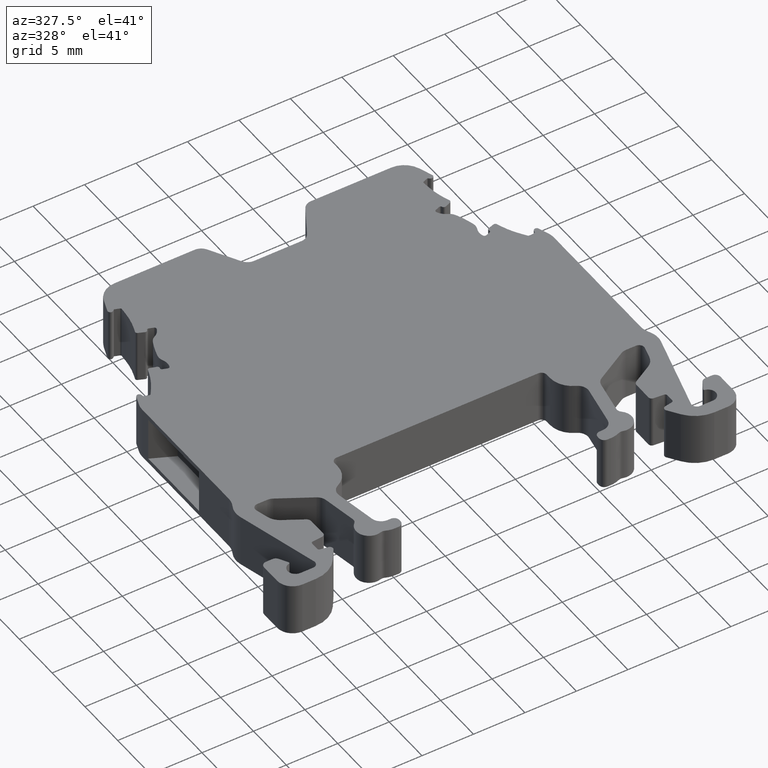
[diagram: clean part render]
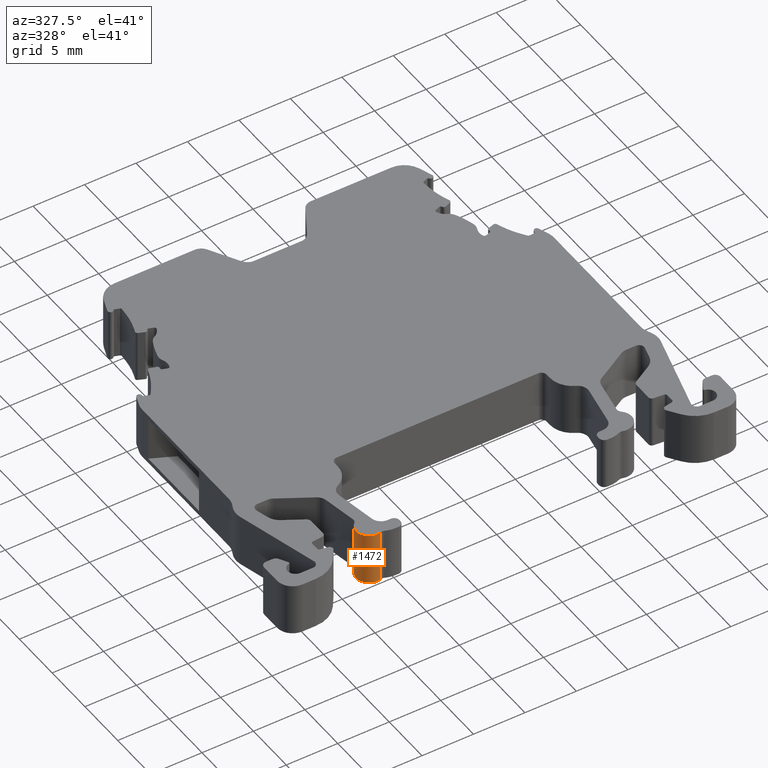
[diagram: same view with one face highlighted and labeled with its STEP entity id]
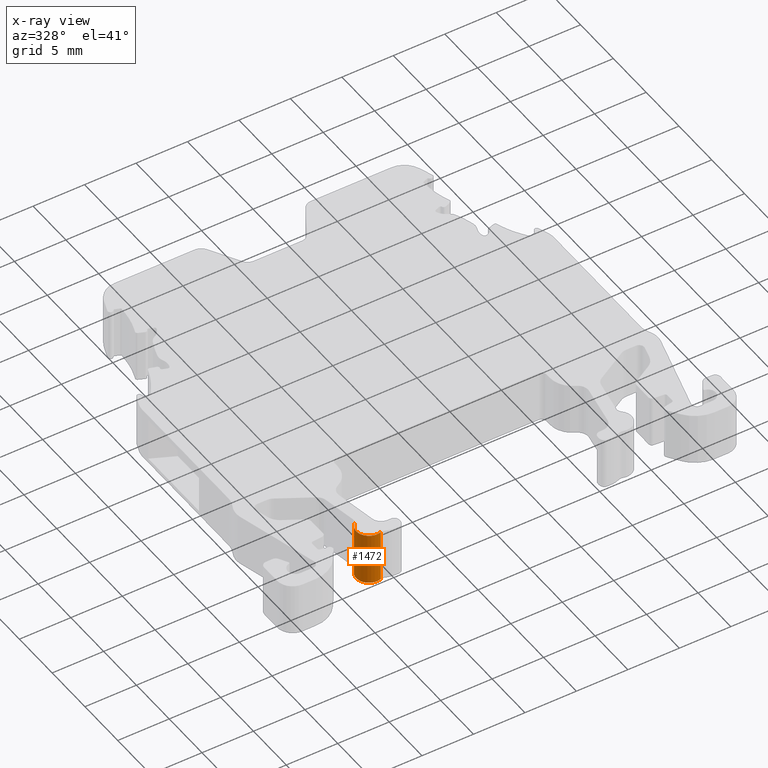
[diagram: x-ray of the same camera — body ghosted, the highlighted face saturated]
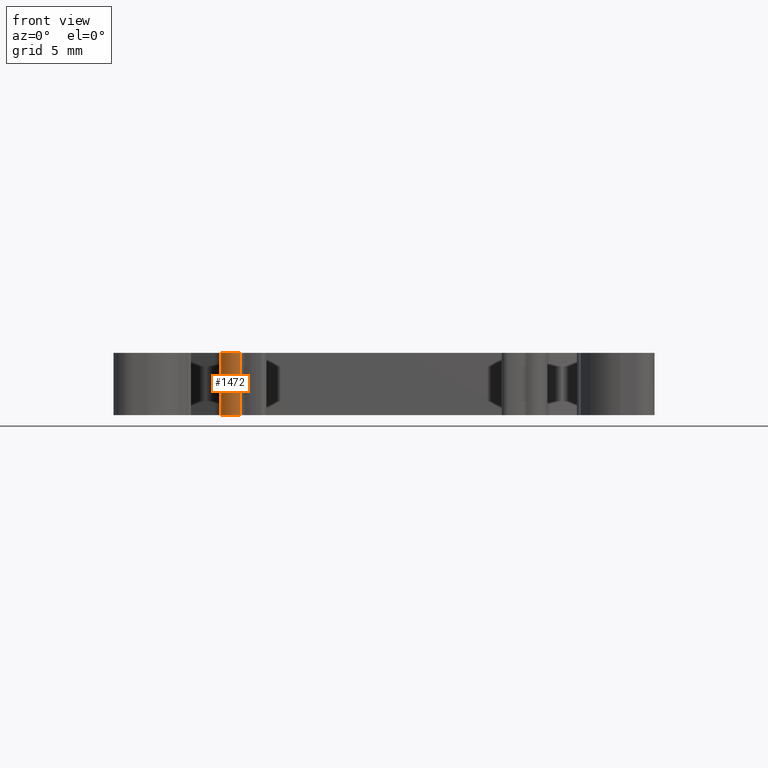
[diagram: same view with one face highlighted and labeled with its STEP entity id]
A machine part, auxiliary view. The second image highlights one B-rep face of the part: STEP entity #1472.
The next image is the same camera in x-ray: the body ghosted, the highlighted face saturated — about 0% of this face is hidden behind the body in this view.
A second angle (front view) of the same face is appended — the face is thin or edge-on in the first view.
In plain terms, the highlighted cylindrical surface (edge-blend (fillet) strip) has radius 1.25 mm, axis along (0, 0, -1).
Its self-contained STEP definition (entity closure, byte-faithful):
#303 = DIRECTION ( 'NONE',  ( 0.0000000000000000000, 0.0000000000000000000, -1.000000000000000000 ) ) ;
#715 = VECTOR ( 'NONE', #6905, 1000.000000000000000 ) ;
#769 = VERTEX_POINT ( 'NONE', #6866 ) ;
#878 = CARTESIAN_POINT ( 'NONE',  ( 1447.215412928026100, 921.6521540635159200, 9.037842237415203400 ) ) ;
#928 = DIRECTION ( 'NONE',  ( 0.0000000000000000000, 0.0000000000000000000, -1.000000000000000000 ) ) ;
#1182 = LINE ( 'NONE', #878, #6704 ) ;
#1238 = LINE ( 'NONE', #5420, #715 ) ;
#1472 = ADVANCED_FACE ( 'NONE', ( #3976 ), #7133, .T. ) ;
#1628 = CARTESIAN_POINT ( 'NONE',  ( 1448.040181438540200, 920.7128687479349800, -48.05000000000000400 ) ) ;
#2146 = AXIS2_PLACEMENT_3D ( 'NONE', #2796, #4169, #4862 ) ;
#2302 = DIRECTION ( 'NONE',  ( -0.0000000000000000000, 0.0000000000000000000, -1.000000000000000000 ) ) ;
#2305 = CARTESIAN_POINT ( 'NONE',  ( 1448.435957486334200, 919.5271785185789200, -48.05000000000000400 ) ) ;
#2796 = CARTESIAN_POINT ( 'NONE',  ( 1448.040181438540200, 920.7128687479349800, -42.94999999999999600 ) ) ;
#3695 = ORIENTED_EDGE ( 'NONE', *, *, #3708, .T. ) ;
#3708 = EDGE_CURVE ( 'NONE', #5948, #769, #1182, .T. ) ;
#3976 = FACE_OUTER_BOUND ( 'NONE', #6883, .T. ) ;
#4169 = DIRECTION ( 'NONE',  ( 0.0000000000000000000, 0.0000000000000000000, -1.000000000000000000 ) ) ;
#4516 = VERTEX_POINT ( 'NONE', #7166 ) ;
#4756 = ORIENTED_EDGE ( 'NONE', *, *, #7429, .T. ) ;
#4862 = DIRECTION ( 'NONE',  ( -1.000000000000000000, 0.0000000000000000000, 0.0000000000000000000 ) ) ;
#5128 = ORIENTED_EDGE ( 'NONE', *, *, #8544, .F. ) ;
#5420 = CARTESIAN_POINT ( 'NONE',  ( 1448.435957486334200, 919.5271785185789200, 9.037842237415203400 ) ) ;
#5896 = ORIENTED_EDGE ( 'NONE', *, *, #6146, .F. ) ;
#5948 = VERTEX_POINT ( 'NONE', #8452 ) ;
#6146 = EDGE_CURVE ( 'NONE', #7738, #769, #7848, .T. ) ;
#6291 = AXIS2_PLACEMENT_3D ( 'NONE', #7163, #303, #7282 ) ;
#6451 = DIRECTION ( 'NONE',  ( 1.000000000000000000, 0.0000000000000000000, 0.0000000000000000000 ) ) ;
#6684 = AXIS2_PLACEMENT_3D ( 'NONE', #1628, #2302, #6451 ) ;
#6704 = VECTOR ( 'NONE', #928, 1000.000000000000000 ) ;
#6866 = CARTESIAN_POINT ( 'NONE',  ( 1447.215412928026100, 921.6521540635159200, -48.05000000000000400 ) ) ;
#6883 = EDGE_LOOP ( 'NONE', ( #4756, #3695, #5896, #5128 ) ) ;
#6905 = DIRECTION ( 'NONE',  ( 0.0000000000000000000, 0.0000000000000000000, -1.000000000000000000 ) ) ;
#7133 = CYLINDRICAL_SURFACE ( 'NONE', #6291, 1.249999999999751300 ) ;
#7163 = CARTESIAN_POINT ( 'NONE',  ( 1448.040181438540200, 920.7128687479349800, 9.037842237415203400 ) ) ;
#7166 = CARTESIAN_POINT ( 'NONE',  ( 1448.435957486334200, 919.5271785185789200, -42.94999999999999600 ) ) ;
#7282 = DIRECTION ( 'NONE',  ( 1.000000000000000000, 0.0000000000000000000, 0.0000000000000000000 ) ) ;
#7429 = EDGE_CURVE ( 'NONE', #4516, #5948, #8025, .T. ) ;
#7738 = VERTEX_POINT ( 'NONE', #2305 ) ;
#7848 = CIRCLE ( 'NONE', #6684, 1.249999999999751300 ) ;
#8025 = CIRCLE ( 'NONE', #2146, 1.249999999999751300 ) ;
#8452 = CARTESIAN_POINT ( 'NONE',  ( 1447.215412928026100, 921.6521540635159200, -42.94999999999999600 ) ) ;
#8544 = EDGE_CURVE ( 'NONE', #4516, #7738, #1238, .T. ) ;